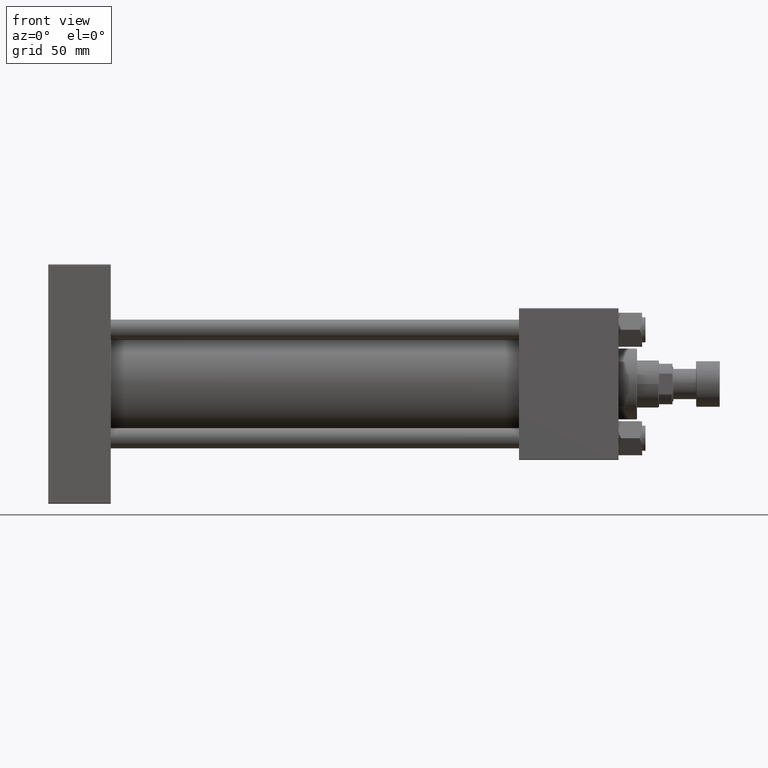
[diagram: clean part render]
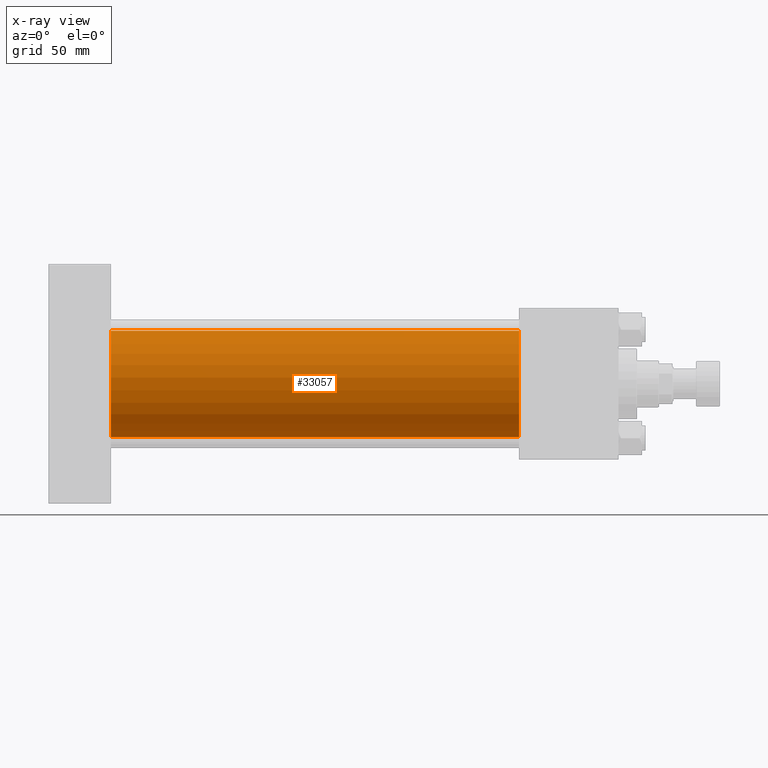
[diagram: x-ray — body ghosted, one internal face saturated and labeled with its STEP entity id]
A machine part, front view, then the same camera in x-ray: the body is ghosted and one INTERNAL B-rep face — a face not visible from any outside direction — is saturated and labeled: STEP entity #33057.
In plain terms, the highlighted cylindrical surface (partial cylindrical patch) has radius 31.5 mm, axis along (-1, -0, -0).
Its self-contained STEP definition (entity closure, byte-faithful):
#1800 = DIRECTION ( 'NONE',  ( 0.000000000000000000, 0.000000000000000000, -1.000000000000000000 ) ) ;
#1886 = CIRCLE ( 'NONE', #29014, 31.50000000000000000 ) ;
#2732 = ORIENTED_EDGE ( 'NONE', *, *, #32605, .F. ) ;
#3096 = ORIENTED_EDGE ( 'NONE', *, *, #5742, .T. ) ;
#3725 = EDGE_CURVE ( 'NONE', #40649, #6745, #28366, .T. ) ;
#5230 = DIRECTION ( 'NONE',  ( 1.000000000000000000, 0.000000000000000000, 0.000000000000000000 ) ) ;
#5742 = EDGE_CURVE ( 'NONE', #6745, #35070, #42702, .T. ) ;
#6309 = DIRECTION ( 'NONE',  ( -1.000000000000000000, -0.000000000000000000, -0.000000000000000000 ) ) ;
#6745 = VERTEX_POINT ( 'NONE', #21013 ) ;
#9774 = CARTESIAN_POINT ( 'NONE',  ( 278.9999999999999432, -2.602085213965210642E-15, 0.000000000000000000 ) ) ;
#11266 = LINE ( 'NONE', #15502, #45346 ) ;
#12304 = CARTESIAN_POINT ( 'NONE',  ( 37.00000000000000000, 1.255552203348951850E-15, -31.50000000000000000 ) ) ;
#15502 = CARTESIAN_POINT ( 'NONE',  ( 278.9999999999999432, -2.602085213965210642E-15, 31.50000000000000000 ) ) ;
#16567 = VECTOR ( 'NONE', #6309, 1000.000000000000000 ) ;
#19251 = CARTESIAN_POINT ( 'NONE',  ( 37.00000000000000000, -2.602085213965210642E-15, 31.50000000000000000 ) ) ;
#19686 = DIRECTION ( 'NONE',  ( 0.000000000000000000, 0.000000000000000000, 1.000000000000000000 ) ) ;
#21013 = CARTESIAN_POINT ( 'NONE',  ( 278.9999999999999432, 1.255552203348951850E-15, -31.50000000000000000 ) ) ;
#22973 = EDGE_LOOP ( 'NONE', ( #41423, #3096, #41572, #2732 ) ) ;
#23676 = CYLINDRICAL_SURFACE ( 'NONE', #47100, 31.50000000000000000 ) ;
#25404 = CARTESIAN_POINT ( 'NONE',  ( 37.00000000000000000, -2.602085213965210642E-15, 0.000000000000000000 ) ) ;
#25971 = DIRECTION ( 'NONE',  ( 1.000000000000000000, 0.000000000000000000, 0.000000000000000000 ) ) ;
#26901 = EDGE_CURVE ( 'NONE', #39747, #35070, #1886, .T. ) ;
#27013 = CARTESIAN_POINT ( 'NONE',  ( 278.9999999999999432, 1.255552203348951850E-15, -31.50000000000000000 ) ) ;
#27988 = DIRECTION ( 'NONE',  ( -1.000000000000000000, -0.000000000000000000, -0.000000000000000000 ) ) ;
#28366 = CIRCLE ( 'NONE', #30072, 31.50000000000000000 ) ;
#29014 = AXIS2_PLACEMENT_3D ( 'NONE', #25404, #5230, #46668 ) ;
#30072 = AXIS2_PLACEMENT_3D ( 'NONE', #9774, #25971, #1800 ) ;
#32605 = EDGE_CURVE ( 'NONE', #40649, #39747, #11266, .T. ) ;
#33057 = ADVANCED_FACE ( 'NONE', ( #47875 ), #23676, .F. ) ;
#35070 = VERTEX_POINT ( 'NONE', #12304 ) ;
#37492 = CARTESIAN_POINT ( 'NONE',  ( 278.9999999999999432, -2.602085213965210642E-15, 31.50000000000000000 ) ) ;
#39747 = VERTEX_POINT ( 'NONE', #19251 ) ;
#39911 = CARTESIAN_POINT ( 'NONE',  ( 278.9999999999999432, -2.602085213965210642E-15, 0.000000000000000000 ) ) ;
#40649 = VERTEX_POINT ( 'NONE', #37492 ) ;
#41423 = ORIENTED_EDGE ( 'NONE', *, *, #3725, .T. ) ;
#41572 = ORIENTED_EDGE ( 'NONE', *, *, #26901, .F. ) ;
#42702 = LINE ( 'NONE', #27013, #16567 ) ;
#45346 = VECTOR ( 'NONE', #27988, 1000.000000000000000 ) ;
#46668 = DIRECTION ( 'NONE',  ( 0.000000000000000000, 0.000000000000000000, -1.000000000000000000 ) ) ;
#47100 = AXIS2_PLACEMENT_3D ( 'NONE', #39911, #47610, #19686 ) ;
#47610 = DIRECTION ( 'NONE',  ( -1.000000000000000000, -0.000000000000000000, -0.000000000000000000 ) ) ;
#47875 = FACE_OUTER_BOUND ( 'NONE', #22973, .T. ) ;